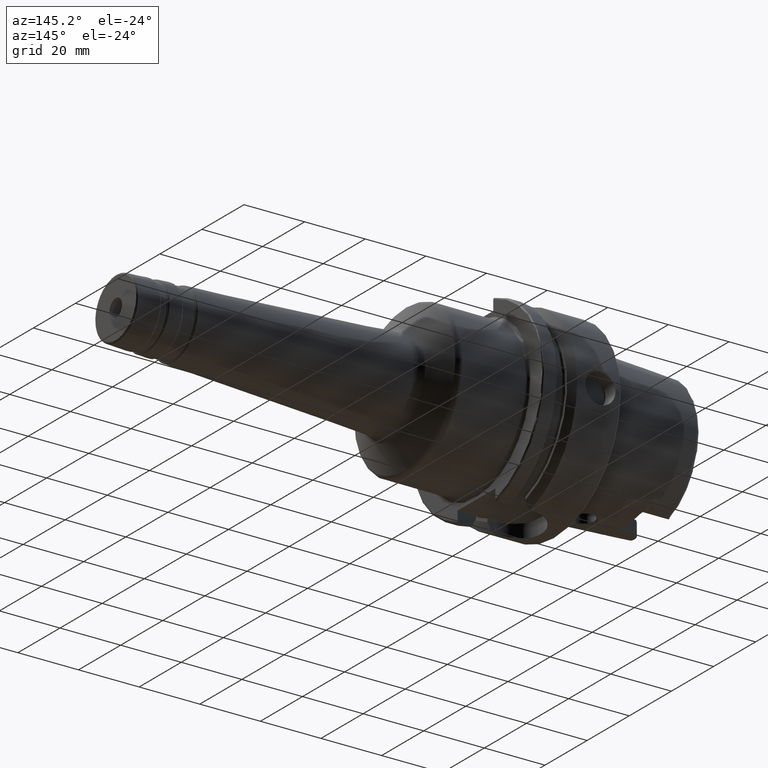
[diagram: clean part render]
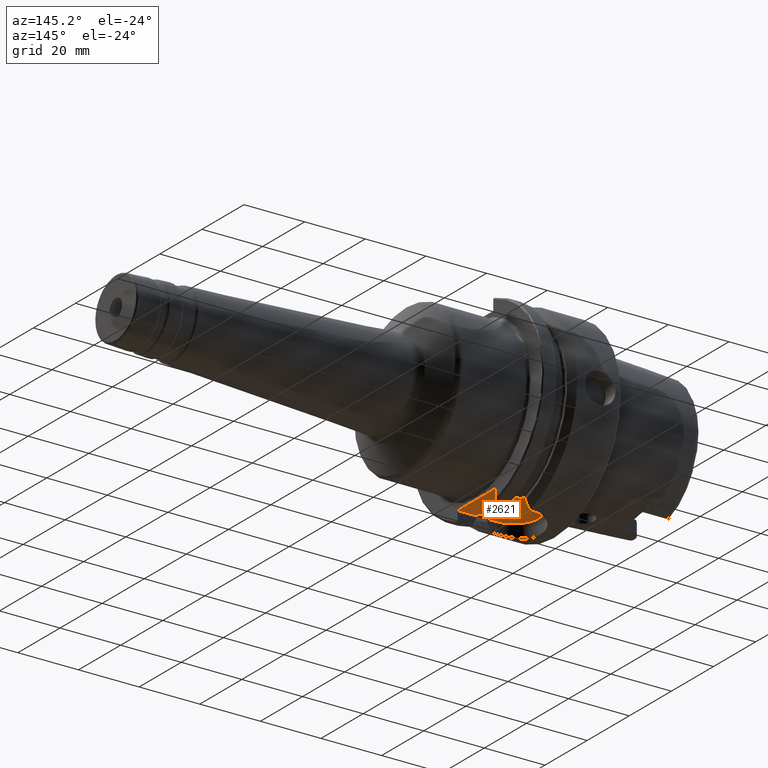
[diagram: same view with one face highlighted and labeled with its STEP entity id]
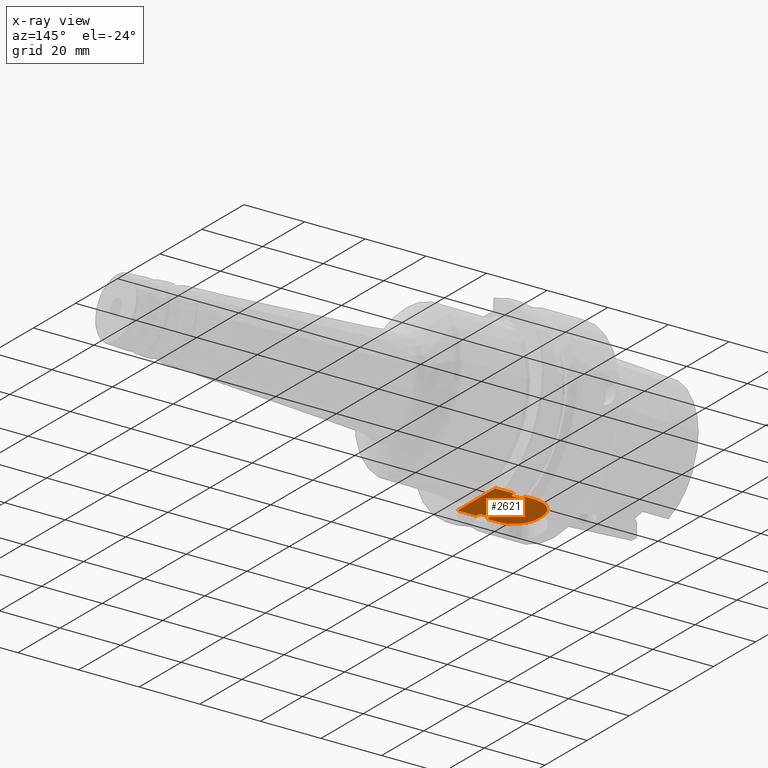
[diagram: x-ray of the same camera — body ghosted, the highlighted face saturated]
A machine part, auxiliary view. The second image highlights one B-rep face of the part: STEP entity #2621.
The next image is the same camera in x-ray: the body ghosted, the highlighted face saturated — about 0% of this face is hidden behind the body in this view.
In plain terms, the highlighted planar face has unit normal (0, 0, 1).
Its self-contained STEP definition (entity closure, byte-faithful):
#70=B_SPLINE_CURVE_WITH_KNOTS('',3,(#5168,#5169,#5170,#5171,#5172,#5173,
#5174,#5175,#5176,#5177),.UNSPECIFIED.,.F.,.F.,(4,2,2,2,4),(0.328785692776271,
0.334026201575553,0.340879824321645,0.368343350403884,0.499212073098123),
 .UNSPECIFIED.);
#71=B_SPLINE_CURVE_WITH_KNOTS('',3,(#5180,#5181,#5182,#5183,#5184,#5185,
#5186,#5187,#5188,#5189),.UNSPECIFIED.,.F.,.F.,(4,2,2,2,4),(0.15835931245442,
0.289228035148658,0.316691561230896,0.323545183976989,0.32878569277627),
 .UNSPECIFIED.);
#72=B_SPLINE_CURVE_WITH_KNOTS('',3,(#5191,#5192,#5193,#5194,#5195,#5196,
#5197,#5198,#5199,#5200),.UNSPECIFIED.,.F.,.F.,(4,2,2,2,4),(0.32878569277627,
0.334026201575551,0.340879824321645,0.368343350403882,0.49921207309812),
 .UNSPECIFIED.);
#73=B_SPLINE_CURVE_WITH_KNOTS('',3,(#5203,#5204,#5205,#5206,#5207,#5208,
#5209,#5210,#5211,#5212),.UNSPECIFIED.,.F.,.F.,(4,2,2,2,4),(0.15835931245442,
0.289228035148658,0.316691561230897,0.323545183976989,0.328785692776271),
 .UNSPECIFIED.);
#156=PLANE('',#2936);
#177=LINE('',#3957,#294);
#243=LINE('',#5080,#360);
#244=LINE('',#5089,#361);
#249=LINE('',#5118,#366);
#253=LINE('',#5157,#370);
#255=LINE('',#5161,#372);
#256=LINE('',#5179,#373);
#257=LINE('',#5202,#374);
#294=VECTOR('',#3103,10.);
#360=VECTOR('',#3589,10.);
#361=VECTOR('',#3592,10.);
#366=VECTOR('',#3605,10.);
#370=VECTOR('',#3615,10.);
#372=VECTOR('',#3619,10.);
#373=VECTOR('',#3622,10.);
#374=VECTOR('',#3623,10.);
#515=FACE_OUTER_BOUND('',#657,.T.);
#657=EDGE_LOOP('',(#2154,#2155,#2156,#2157,#2158,#2159,#2160,#2161,#2162,
#2163,#2164,#2165,#2166,#2167));
#875=CIRCLE('',#2929,8.);
#877=CIRCLE('',#2933,8.);
#962=VERTEX_POINT('',#3954);
#963=VERTEX_POINT('',#3956);
#1154=VERTEX_POINT('',#5057);
#1158=VERTEX_POINT('',#5082);
#1160=VERTEX_POINT('',#5088);
#1165=VERTEX_POINT('',#5111);
#1167=VERTEX_POINT('',#5117);
#1169=VERTEX_POINT('',#5132);
#1172=VERTEX_POINT('',#5152);
#1173=VERTEX_POINT('',#5160);
#1174=VERTEX_POINT('',#5167);
#1175=VERTEX_POINT('',#5178);
#1176=VERTEX_POINT('',#5190);
#1177=VERTEX_POINT('',#5201);
#1258=EDGE_CURVE('',#962,#963,#177,.T.);
#1514=EDGE_CURVE('',#963,#1154,#243,.T.);
#1516=EDGE_CURVE('',#1158,#1160,#244,.T.);
#1522=EDGE_CURVE('',#1160,#1165,#875,.T.);
#1525=EDGE_CURVE('',#1165,#1167,#249,.T.);
#1528=EDGE_CURVE('',#1167,#1169,#877,.T.);
#1534=EDGE_CURVE('',#1172,#962,#253,.T.);
#1536=EDGE_CURVE('',#1169,#1173,#255,.T.);
#1538=EDGE_CURVE('',#1174,#1158,#70,.T.);
#1539=EDGE_CURVE('',#1175,#1174,#256,.T.);
#1540=EDGE_CURVE('',#1154,#1175,#71,.T.);
#1541=EDGE_CURVE('',#1176,#1172,#72,.T.);
#1542=EDGE_CURVE('',#1177,#1176,#257,.T.);
#1543=EDGE_CURVE('',#1173,#1177,#73,.T.);
#2154=ORIENTED_EDGE('',*,*,#1538,.F.);
#2155=ORIENTED_EDGE('',*,*,#1539,.F.);
#2156=ORIENTED_EDGE('',*,*,#1540,.F.);
#2157=ORIENTED_EDGE('',*,*,#1514,.F.);
#2158=ORIENTED_EDGE('',*,*,#1258,.F.);
#2159=ORIENTED_EDGE('',*,*,#1534,.F.);
#2160=ORIENTED_EDGE('',*,*,#1541,.F.);
#2161=ORIENTED_EDGE('',*,*,#1542,.F.);
#2162=ORIENTED_EDGE('',*,*,#1543,.F.);
#2163=ORIENTED_EDGE('',*,*,#1536,.F.);
#2164=ORIENTED_EDGE('',*,*,#1528,.F.);
#2165=ORIENTED_EDGE('',*,*,#1525,.F.);
#2166=ORIENTED_EDGE('',*,*,#1522,.F.);
#2167=ORIENTED_EDGE('',*,*,#1516,.F.);
#2621=ADVANCED_FACE('',(#515),#156,.F.);
#2929=AXIS2_PLACEMENT_3D('',#5112,#3598,#3599);
#2933=AXIS2_PLACEMENT_3D('',#5133,#3609,#3610);
#2936=AXIS2_PLACEMENT_3D('',#5166,#3620,#3621);
#3103=DIRECTION('',(0.,1.,0.));
#3589=DIRECTION('',(-1.,2.56205313375036E-16,0.));
#3592=DIRECTION('',(-1.,2.56205313375036E-16,0.));
#3598=DIRECTION('center_axis',(0.,0.,1.));
#3599=DIRECTION('ref_axis',(0.,1.,0.));
#3605=DIRECTION('',(0.,-1.,0.));
#3609=DIRECTION('center_axis',(0.,0.,1.));
#3610=DIRECTION('ref_axis',(-1.,-2.42861286636753E-16,0.));
#3615=DIRECTION('',(1.,-2.56205313375036E-16,0.));
#3619=DIRECTION('',(1.,-2.56205313375036E-16,0.));
#3620=DIRECTION('center_axis',(0.,0.,1.));
#3621=DIRECTION('ref_axis',(1.,0.,0.));
#3622=DIRECTION('',(-1.,0.,0.));
#3623=DIRECTION('',(1.,0.,0.));
#3954=CARTESIAN_POINT('',(26.,-9.,-26.5));
#3956=CARTESIAN_POINT('',(26.,9.,-26.5));
#3957=CARTESIAN_POINT('',(26.,1.94289029309402E-15,-26.5));
#5057=CARTESIAN_POINT('',(19.8748205133158,9.,-26.5));
#5080=CARTESIAN_POINT('',(26.,9.,-26.5));
#5082=CARTESIAN_POINT('',(16.1251794866842,9.,-26.5));
#5088=CARTESIAN_POINT('',(13.,9.00000000000001,-26.5));
#5089=CARTESIAN_POINT('',(26.,9.,-26.5));
#5111=CARTESIAN_POINT('',(5.,1.,-26.5));
#5112=CARTESIAN_POINT('Origin',(13.,1.,-26.5));
#5117=CARTESIAN_POINT('',(5.,-0.999999999999999,-26.5));
#5118=CARTESIAN_POINT('',(5.,1.,-26.5));
#5132=CARTESIAN_POINT('',(13.,-9.,-26.5));
#5133=CARTESIAN_POINT('Origin',(13.,-0.999999999999997,-26.5));
#5152=CARTESIAN_POINT('',(19.8748205133158,-9.,-26.5));
#5157=CARTESIAN_POINT('',(13.,-9.,-26.5));
#5160=CARTESIAN_POINT('',(16.1251794866842,-9.,-26.5));
#5161=CARTESIAN_POINT('',(13.,-9.,-26.5));
#5166=CARTESIAN_POINT('Origin',(15.5,3.88578058618805E-15,-26.5));
#5167=CARTESIAN_POINT('',(16.625,7.34846922834952,-26.5));
#5168=CARTESIAN_POINT('Ctrl Pts',(16.625,7.34846922834952,-26.5));
#5169=CARTESIAN_POINT('Ctrl Pts',(16.6075316373357,7.34846922834952,-26.5));
#5170=CARTESIAN_POINT('Ctrl Pts',(16.587038394856,7.35287762173868,-26.5));
#5171=CARTESIAN_POINT('Ctrl Pts',(16.5496994821687,7.36807649661538,-26.5));
#5172=CARTESIAN_POINT('Ctrl Pts',(16.5270295504762,7.38349170057081,-26.5));
#5173=CARTESIAN_POINT('Ctrl Pts',(16.4411490019356,7.4590543697872,-26.5));
#5174=CARTESIAN_POINT('Ctrl Pts',(16.3906456489289,7.5566112023157,-26.5));
#5175=CARTESIAN_POINT('Ctrl Pts',(16.1819334034884,8.04136347440828,-26.5));
#5176=CARTESIAN_POINT('Ctrl Pts',(16.12898241235,8.55877260788573,-26.5));
#5177=CARTESIAN_POINT('Ctrl Pts',(16.1251794866842,9.,-26.5));
#5178=CARTESIAN_POINT('',(19.375,7.34846922834952,-26.5));
#5179=CARTESIAN_POINT('',(18.,7.34846922834952,-26.5));
#5180=CARTESIAN_POINT('Ctrl Pts',(19.8748205133158,9.,-26.5));
#5181=CARTESIAN_POINT('Ctrl Pts',(19.87101758765,8.55877260788574,-26.5));
#5182=CARTESIAN_POINT('Ctrl Pts',(19.8180665965116,8.04136347440828,-26.5));
#5183=CARTESIAN_POINT('Ctrl Pts',(19.6093543510711,7.5566112023157,-26.5));
#5184=CARTESIAN_POINT('Ctrl Pts',(19.5588509980644,7.45905436978721,-26.5));
#5185=CARTESIAN_POINT('Ctrl Pts',(19.4729704495238,7.38349170057082,-26.5));
#5186=CARTESIAN_POINT('Ctrl Pts',(19.4503005178313,7.36807649661538,-26.5));
#5187=CARTESIAN_POINT('Ctrl Pts',(19.412961605144,7.35287762173868,-26.5));
#5188=CARTESIAN_POINT('Ctrl Pts',(19.3924683626643,7.34846922834952,-26.5));
#5189=CARTESIAN_POINT('Ctrl Pts',(19.375,7.34846922834952,-26.5));
#5190=CARTESIAN_POINT('',(19.375,-7.34846922834952,-26.5));
#5191=CARTESIAN_POINT('Ctrl Pts',(19.375,-7.34846922834952,-26.5));
#5192=CARTESIAN_POINT('Ctrl Pts',(19.3924683626643,-7.34846922834952,-26.5));
#5193=CARTESIAN_POINT('Ctrl Pts',(19.412961605144,-7.35287762173868,-26.5));
#5194=CARTESIAN_POINT('Ctrl Pts',(19.4503005178313,-7.36807649661538,-26.5));
#5195=CARTESIAN_POINT('Ctrl Pts',(19.4729704495238,-7.38349170057082,-26.5));
#5196=CARTESIAN_POINT('Ctrl Pts',(19.5588509980644,-7.45905436978721,-26.5));
#5197=CARTESIAN_POINT('Ctrl Pts',(19.6093543510711,-7.5566112023157,-26.5));
#5198=CARTESIAN_POINT('Ctrl Pts',(19.8180665965116,-8.04136347440828,-26.5));
#5199=CARTESIAN_POINT('Ctrl Pts',(19.87101758765,-8.55877260788573,-26.5));
#5200=CARTESIAN_POINT('Ctrl Pts',(19.8748205133158,-9.,-26.5));
#5201=CARTESIAN_POINT('',(16.625,-7.34846922834952,-26.5));
#5202=CARTESIAN_POINT('',(18.,-7.34846922834952,-26.5));
#5203=CARTESIAN_POINT('Ctrl Pts',(16.1251794866842,-9.,-26.5));
#5204=CARTESIAN_POINT('Ctrl Pts',(16.12898241235,-8.55877260788573,-26.5));
#5205=CARTESIAN_POINT('Ctrl Pts',(16.1819334034884,-8.04136347440828,-26.5));
#5206=CARTESIAN_POINT('Ctrl Pts',(16.3906456489289,-7.5566112023157,-26.5));
#5207=CARTESIAN_POINT('Ctrl Pts',(16.4411490019356,-7.4590543697872,-26.5));
#5208=CARTESIAN_POINT('Ctrl Pts',(16.5270295504762,-7.38349170057081,-26.5));
#5209=CARTESIAN_POINT('Ctrl Pts',(16.5496994821687,-7.36807649661538,-26.5));
#5210=CARTESIAN_POINT('Ctrl Pts',(16.587038394856,-7.35287762173868,-26.5));
#5211=CARTESIAN_POINT('Ctrl Pts',(16.6075316373357,-7.34846922834952,-26.5));
#5212=CARTESIAN_POINT('Ctrl Pts',(16.625,-7.34846922834952,-26.5));